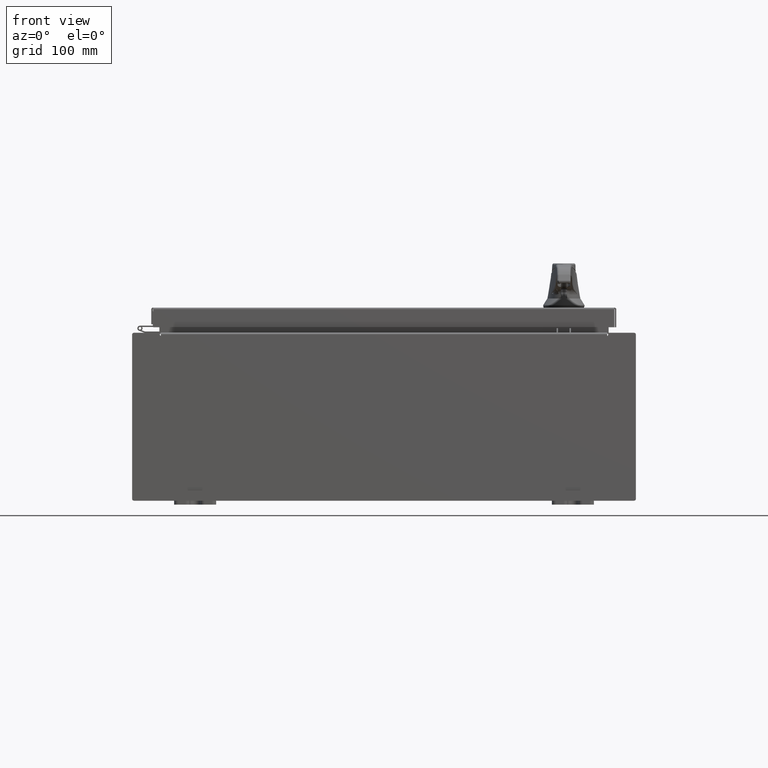
[diagram: clean part render]
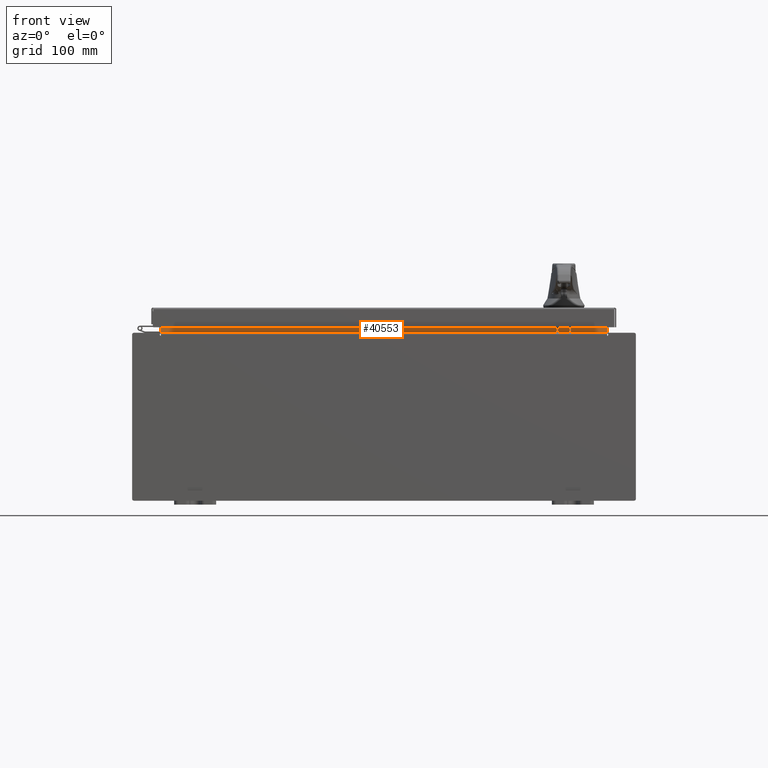
[diagram: same view with one face highlighted and labeled with its STEP entity id]
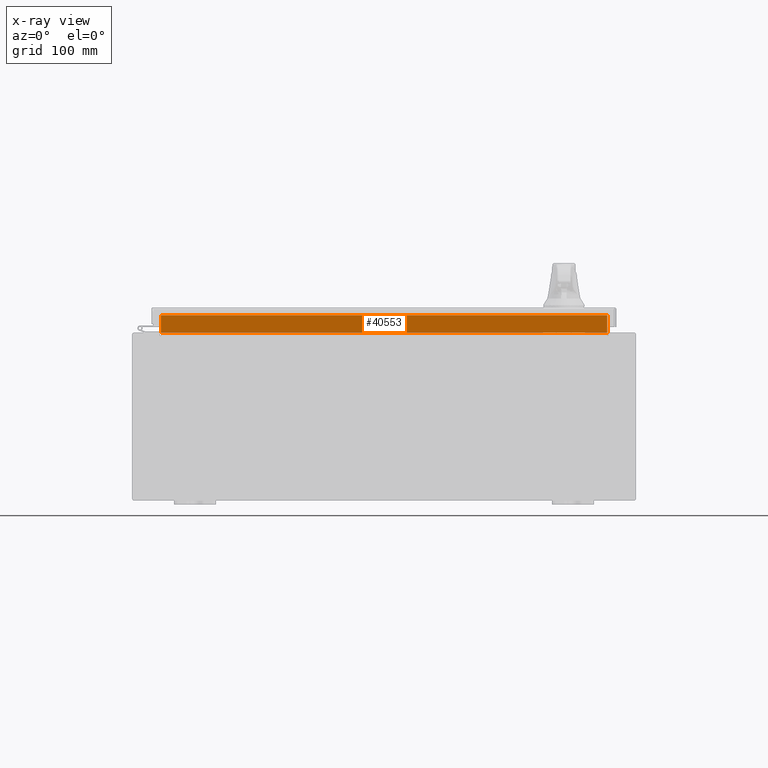
[diagram: x-ray of the same camera — body ghosted, the highlighted face saturated]
A machine part, front view. The second image highlights one B-rep face of the part: STEP entity #40553.
The next image is the same camera in x-ray: the body ghosted, the highlighted face saturated — about 0% of this face is hidden behind the body in this view.
In plain terms, the highlighted planar face has unit normal (0, -1, 0).
Its self-contained STEP definition (entity closure, byte-faithful):
#1289 = EDGE_LOOP ( 'NONE', ( #35027, #107310, #6121, #52445 ) ) ;
#1615 = DIRECTION ( 'NONE',  ( -0.0000000000000000000, -0.0000000000000000000, -1.000000000000000000 ) ) ;
#1645 = VECTOR ( 'NONE', #67312, 39.37007874015748100 ) ;
#3529 = CARTESIAN_POINT ( 'NONE',  ( 10.63720000000000400, -1.300299999999999800, 4.013000000000003500 ) ) ;
#6121 = ORIENTED_EDGE ( 'NONE', *, *, #30962, .F. ) ;
#13744 = VECTOR ( 'NONE', #1615, 39.37007874015748100 ) ;
#14647 = LINE ( 'NONE', #42378, #37301 ) ;
#15350 = EDGE_CURVE ( 'NONE', #95746, #85039, #59102, .T. ) ;
#30928 = CARTESIAN_POINT ( 'NONE',  ( -10.63720000000000200, -1.300299999999999300, 4.837600000000003700 ) ) ;
#30962 = EDGE_CURVE ( 'NONE', #62922, #34996, #66961, .T. ) ;
#33409 = CARTESIAN_POINT ( 'NONE',  ( 10.63720000000000200, -1.300299999999999800, 4.925300000000004500 ) ) ;
#34996 = VERTEX_POINT ( 'NONE', #47511 ) ;
#35027 = ORIENTED_EDGE ( 'NONE', *, *, #15350, .F. ) ;
#37301 = VECTOR ( 'NONE', #84882, 39.37007874015748100 ) ;
#37332 = EDGE_CURVE ( 'NONE', #85039, #62922, #92986, .T. ) ;
#39816 = EDGE_CURVE ( 'NONE', #34996, #95746, #14647, .T. ) ;
#40553 = ADVANCED_FACE ( 'NONE', ( #73257 ), #88447, .T. ) ;
#42378 = CARTESIAN_POINT ( 'NONE',  ( 10.63720000000000200, -1.300299999999999300, 4.837600000000003700 ) ) ;
#45143 = AXIS2_PLACEMENT_3D ( 'NONE', #97074, #45904, #105745 ) ;
#45904 = DIRECTION ( 'NONE',  ( 0.0000000000000000000, 1.000000000000000000, 0.0000000000000000000 ) ) ;
#47511 = CARTESIAN_POINT ( 'NONE',  ( 10.63720000000000200, -1.300299999999999800, 4.837600000000003700 ) ) ;
#47544 = VECTOR ( 'NONE', #51618, 39.37007874015748100 ) ;
#51618 = DIRECTION ( 'NONE',  ( 1.000000000000000000, 0.0000000000000000000, -2.568202152506545800E-017 ) ) ;
#52445 = ORIENTED_EDGE ( 'NONE', *, *, #37332, .F. ) ;
#58671 = CARTESIAN_POINT ( 'NONE',  ( -10.63720000000000400, -1.300299999999999800, 4.013000000000003500 ) ) ;
#59102 = LINE ( 'NONE', #69790, #13744 ) ;
#60180 = CARTESIAN_POINT ( 'NONE',  ( -10.63720000000000200, -1.300299999999999800, 4.013000000000003500 ) ) ;
#62922 = VERTEX_POINT ( 'NONE', #3529 ) ;
#66961 = LINE ( 'NONE', #33409, #1645 ) ;
#67312 = DIRECTION ( 'NONE',  ( -0.0000000000000000000, -0.0000000000000000000, 1.000000000000000000 ) ) ;
#69790 = CARTESIAN_POINT ( 'NONE',  ( -10.63720000000000200, -1.300299999999999800, 4.000000000000004400 ) ) ;
#73257 = FACE_OUTER_BOUND ( 'NONE', #1289, .T. ) ;
#84882 = DIRECTION ( 'NONE',  ( -1.000000000000000000, -0.0000000000000000000, -0.0000000000000000000 ) ) ;
#85039 = VERTEX_POINT ( 'NONE', #58671 ) ;
#88447 = PLANE ( 'NONE',  #45143 ) ;
#92986 = LINE ( 'NONE', #60180, #47544 ) ;
#95746 = VERTEX_POINT ( 'NONE', #30928 ) ;
#97074 = CARTESIAN_POINT ( 'NONE',  ( 0.0000000000000000000, -1.300299999999999800, 0.0000000000000000000 ) ) ;
#105745 = DIRECTION ( 'NONE',  ( 0.0000000000000000000, -0.0000000000000000000, 1.000000000000000000 ) ) ;
#107310 = ORIENTED_EDGE ( 'NONE', *, *, #39816, .F. ) ;